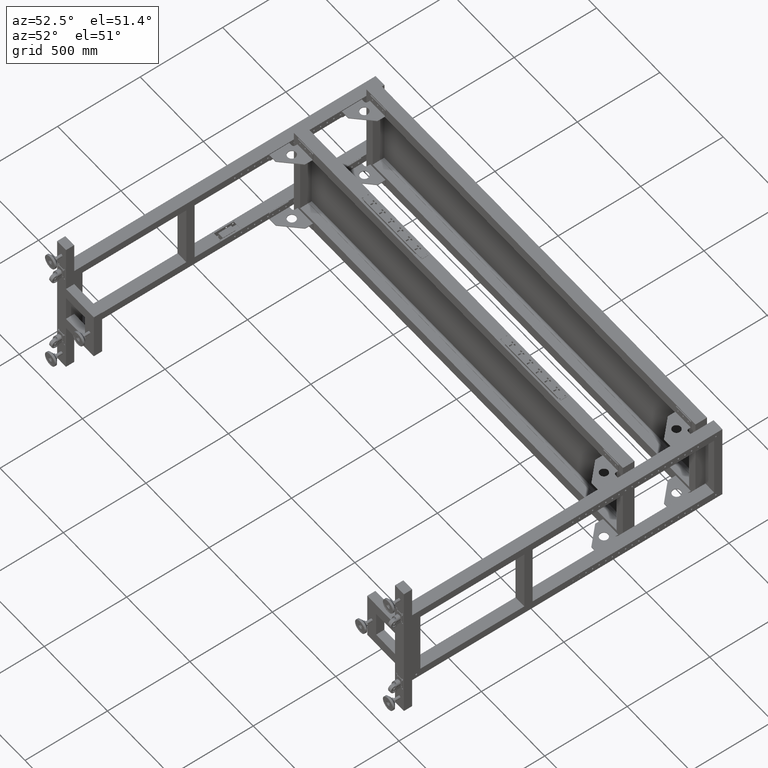
[diagram: clean part render]
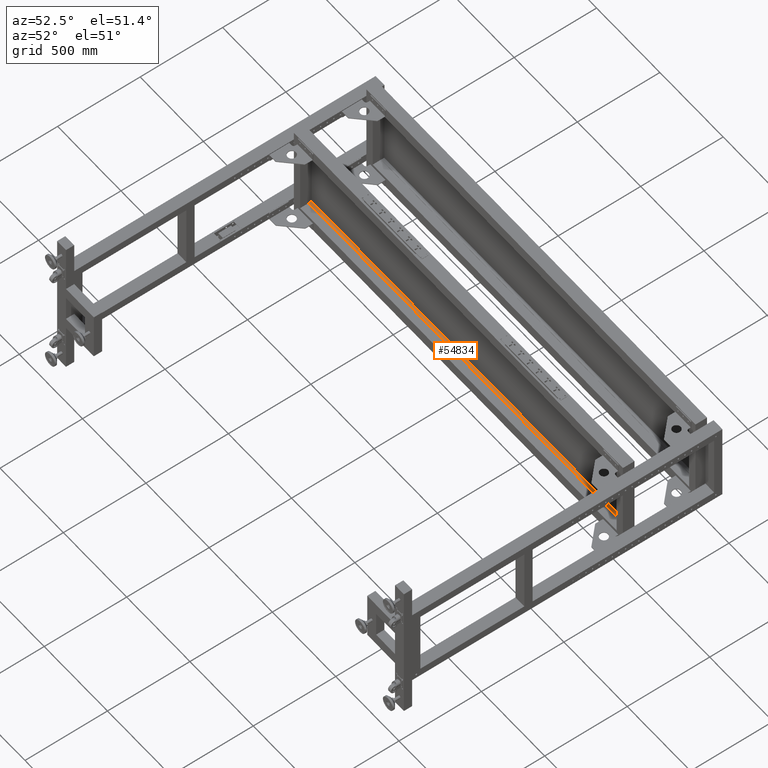
[diagram: same view with one face highlighted and labeled with its STEP entity id]
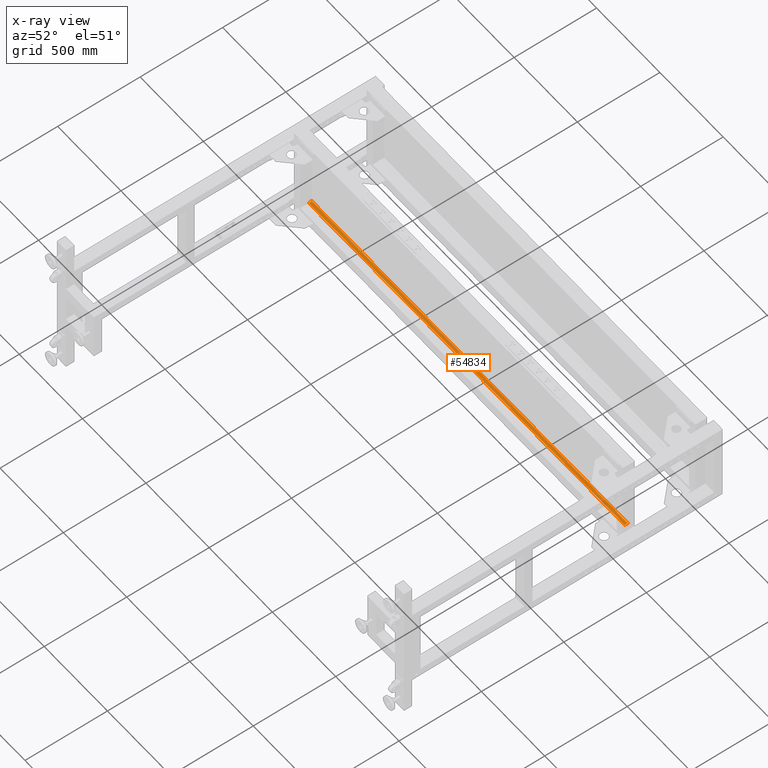
[diagram: x-ray of the same camera — body ghosted, the highlighted face saturated]
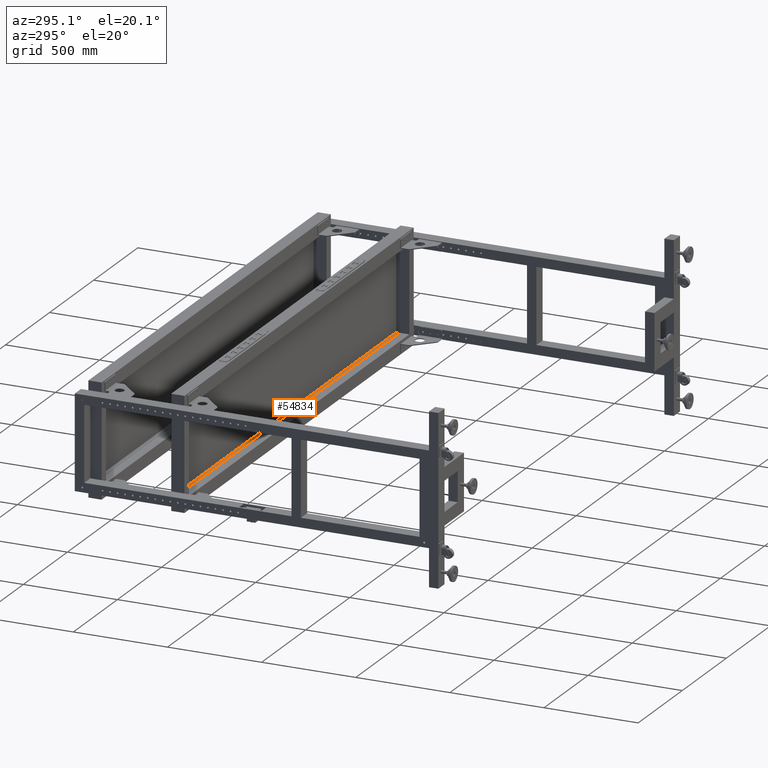
[diagram: same view with one face highlighted and labeled with its STEP entity id]
A machine part, auxiliary view. The second image highlights one B-rep face of the part: STEP entity #54834.
The next image is the same camera in x-ray: the body ghosted, the highlighted face saturated — about 4% of this face is hidden behind the body in this view.
A second angle (auxiliary view) of the same face is appended — the face is thin or edge-on in the first view.
In plain terms, the highlighted planar face has unit normal (0, -0, 1).
Its self-contained STEP definition (entity closure, byte-faithful):
#1647 = DIRECTION ( 'NONE',  ( 4.801425786680858597E-31, -2.000602769257179879E-15, 1.000000000000000000 ) ) ;
#9708 = CARTESIAN_POINT ( 'NONE',  ( 1281.827512562815855, 555.4310804020128671, -228.4999999999998863 ) ) ;
#10443 = EDGE_LOOP ( 'NONE', ( #65048, #48118, #76260, #50657 ) ) ;
#14331 = DIRECTION ( 'NONE',  ( 2.399989573374237993E-16, -1.000000000000000000, -2.000602769257179879E-15 ) ) ;
#15160 = AXIS2_PLACEMENT_3D ( 'NONE', #25345, #1647, #51106 ) ;
#19722 = FACE_OUTER_BOUND ( 'NONE', #10443, .T. ) ;
#21978 = VERTEX_POINT ( 'NONE', #78985 ) ;
#23099 = CARTESIAN_POINT ( 'NONE',  ( 1280.256801884697779, 555.4310804020128671, -228.4999999999998863 ) ) ;
#25345 = CARTESIAN_POINT ( 'NONE',  ( 81.82751256281595431, 555.4410804020130854, -228.4999999999998863 ) ) ;
#26546 = PLANE ( 'NONE',  #15160 ) ;
#26915 = EDGE_CURVE ( 'NONE', #21978, #73518, #65635, .T. ) ;
#29699 = VECTOR ( 'NONE', #14331, 1000.000000000000000 ) ;
#31763 = CARTESIAN_POINT ( 'NONE',  ( -1216.601776759067889, 536.9410804020125170, -228.4999999999998579 ) ) ;
#34096 = VECTOR ( 'NONE', #69691, 1000.000000000000000 ) ;
#37668 = LINE ( 'NONE', #75067, #29699 ) ;
#38748 = DIRECTION ( 'NONE',  ( 1.000000000000000000, 2.399989573374237993E-16, 0.000000000000000000 ) ) ;
#39811 = VECTOR ( 'NONE', #38748, 1000.000000000000000 ) ;
#40687 = VECTOR ( 'NONE', #70462, 1000.000000000000000 ) ;
#40820 = EDGE_CURVE ( 'NONE', #73518, #51777, #45942, .T. ) ;
#45942 = LINE ( 'NONE', #50794, #39811 ) ;
#46193 = EDGE_CURVE ( 'NONE', #59667, #51777, #37668, .T. ) ;
#48118 = ORIENTED_EDGE ( 'NONE', *, *, #26915, .T. ) ;
#50657 = ORIENTED_EDGE ( 'NONE', *, *, #46193, .F. ) ;
#50794 = CARTESIAN_POINT ( 'NONE',  ( 1281.827512562815855, 536.9410804020128580, -228.4999999999998579 ) ) ;
#51106 = DIRECTION ( 'NONE',  ( -1.000000000000000000, -2.399989573374237993E-16, 0.000000000000000000 ) ) ;
#51777 = VERTEX_POINT ( 'NONE', #57290 ) ;
#52365 = EDGE_CURVE ( 'NONE', #59667, #21978, #70872, .T. ) ;
#54834 = ADVANCED_FACE ( 'NONE', ( #19722 ), #26546, .T. ) ;
#57290 = CARTESIAN_POINT ( 'NONE',  ( 1280.256801884697779, 536.9410804020128580, -228.4999999999998579 ) ) ;
#59667 = VERTEX_POINT ( 'NONE', #23099 ) ;
#65048 = ORIENTED_EDGE ( 'NONE', *, *, #52365, .T. ) ;
#65228 = CARTESIAN_POINT ( 'NONE',  ( -1216.601776759067889, 555.4410804020130854, -228.4999999999998863 ) ) ;
#65635 = LINE ( 'NONE', #65228, #40687 ) ;
#69691 = DIRECTION ( 'NONE',  ( -1.000000000000000000, -2.168693109910663549E-16, 4.627323453246184469E-32 ) ) ;
#70462 = DIRECTION ( 'NONE',  ( 0.000000000000000000, -1.000000000000000000, -2.000602769257179879E-15 ) ) ;
#70872 = LINE ( 'NONE', #9708, #34096 ) ;
#73518 = VERTEX_POINT ( 'NONE', #31763 ) ;
#75067 = CARTESIAN_POINT ( 'NONE',  ( 1280.256801884697779, 555.4410804020134265, -228.4999999999998863 ) ) ;
#76260 = ORIENTED_EDGE ( 'NONE', *, *, #40820, .T. ) ;
#78985 = CARTESIAN_POINT ( 'NONE',  ( -1216.601776759067889, 555.4310804020125261, -228.4999999999998863 ) ) ;